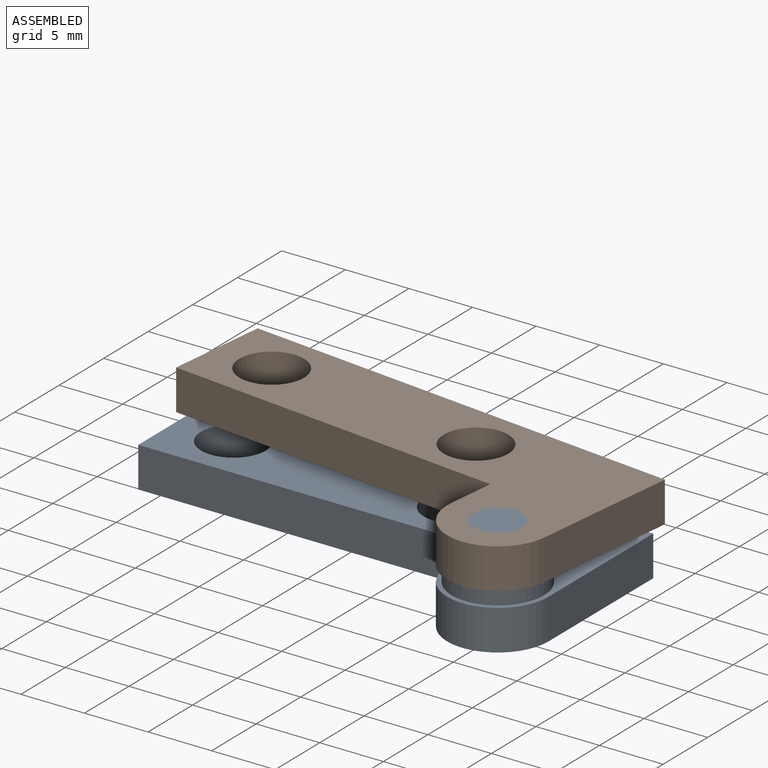
[diagram: assembled view]
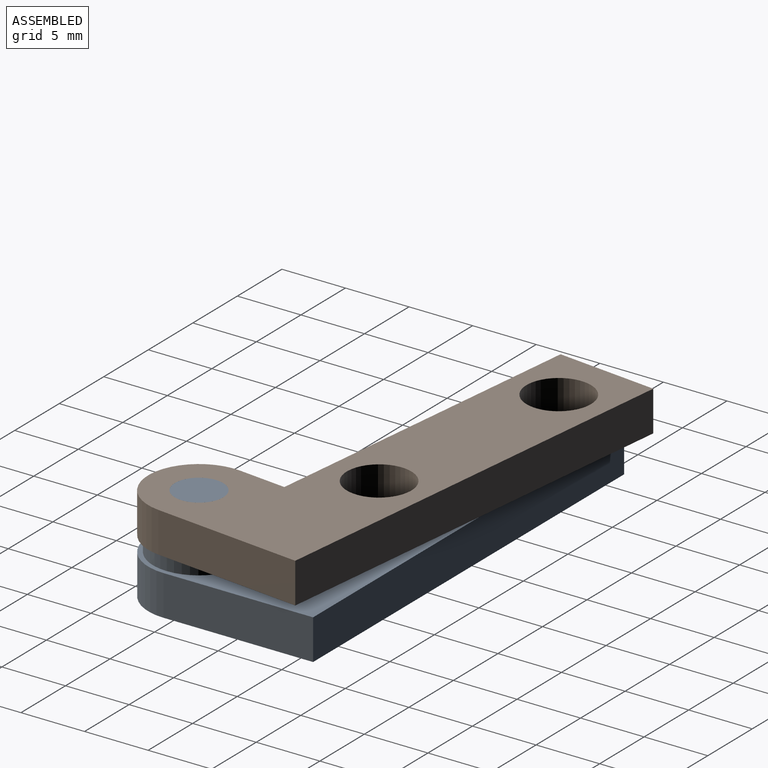
[diagram: assembled view, second angle]
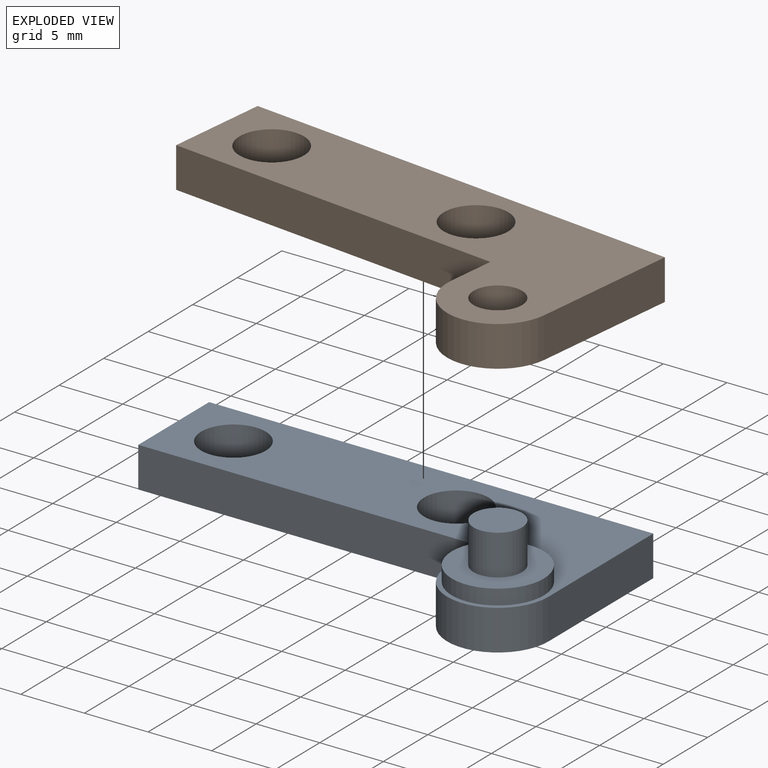
[diagram: exploded view]
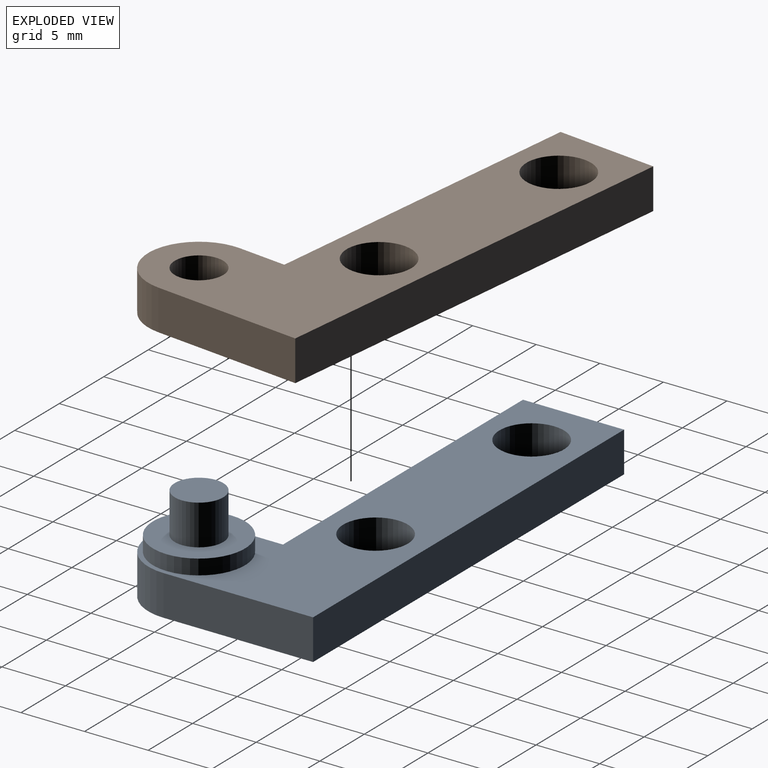
[diagram: exploded view, second angle]
ASSEMBLY  parts=2 mates=2
PART A: 14 faces, bbox 34.9x15.7x7.5 mm
  f0: cylinder r=3.99mm len=7.98mm, axis (0,0,-1), area 39.8mm2, adj f1,f6,f8,f9
  f1: plane 11.76x3.18mm, normal (1,0,0), area 37.3mm2, adj f0,f2,f8,f9
  f2: plane 34.93x3.18mm, normal (0,1,0), area 110.9mm2, adj f1,f3,f8,f9
  f3: plane 7.95x3.18mm, normal (-1,0,0), area 25.2mm2, adj f2,f4,f8,f9
  f4: plane 26.95x3.18mm, normal (0,-1,0), area 85.6mm2, adj f3,f6,f8,f9
  f5: cylinder r=2.54mm len=5.08mm, axis (0,0,-1), area 50.7mm2, adj f8,f9
  f6: plane 3.81x3.18mm, normal (-1,0,0), area 12.1mm2, adj f0,f4,f8,f9
  f7: cylinder r=2.54mm len=5.08mm, axis (0,0,-1), area 50.7mm2, adj f8,f9
  f8: plane 34.93x15.75mm, normal (0,0,1), area 251.3mm2, adj f0,f1,f2,f3,f4,f5,f6,f7
  f9: plane 34.93x15.75mm, normal (0,0,-1), area 292.5mm2, adj f0,f1,f2,f3,f4,f5,f6,f7
  f10: cylinder r=3.62mm len=7.24mm, axis (0,0,-1), area 27.1mm2, adj f8,f11
  f11: plane 7.24x7.24mm, normal (0,0,1), area 29.8mm2, adj f10,f12
  f12: cylinder r=1.91mm len=3.81mm, axis (0,0,-1), area 38mm2, adj f11,f13
  f13: plane 3.81x3.81mm, normal (0,0,1), area 11.4mm2, adj f12
PART B: 11 faces, bbox 34.9x15.7x3.2 mm
  f0: cylinder r=3.99mm len=7.98mm, axis (0,0,-1), area 39.8mm2, adj f1,f7,f9,f10
  f1: plane 11.76x3.18mm, normal (1,0,0), area 37.3mm2, adj f0,f2,f9,f10
  f2: plane 34.93x3.18mm, normal (0,1,0), area 110.9mm2, adj f1,f3,f9,f10
  f3: plane 7.95x3.18mm, normal (-1,0,0), area 25.2mm2, adj f2,f4,f9,f10
  f4: plane 26.95x3.18mm, normal (0,-1,0), area 85.6mm2, adj f3,f7,f9,f10
  f5: cylinder r=2.54mm len=5.08mm, axis (0,0,-1), area 50.7mm2, adj f9,f10
  f6: cylinder r=2.54mm len=5.08mm, axis (0,0,-1), area 50.7mm2, adj f9,f10
  f7: plane 3.81x3.18mm, normal (-1,0,0), area 12.1mm2, adj f0,f4,f9,f10
  f8: cylinder r=1.91mm len=3.81mm, axis (0,0,-1), area 38mm2, adj f9,f10
  f9: plane 34.93x15.75mm, normal (0,0,1), area 281.1mm2, adj f0,f1,f2,f3,f4,f5,f6,f7
  f10: plane 34.93x15.75mm, normal (0,0,-1), area 281.1mm2, adj f0,f1,f2,f3,f4,f5,f6,f7
PLACE A at identity fixed
PLACE B rot(axis=(0,0,-1),6.3deg) t=(0,0,4.37)mm
MATE cylindrical B.f8 <-> A.f12  axis (0,0,-1) through (0,0,7.54)mm
MATE planar B.f10 <-> A.f10  axis (0,0,-1) through (-10,7.77,4.37)mm
